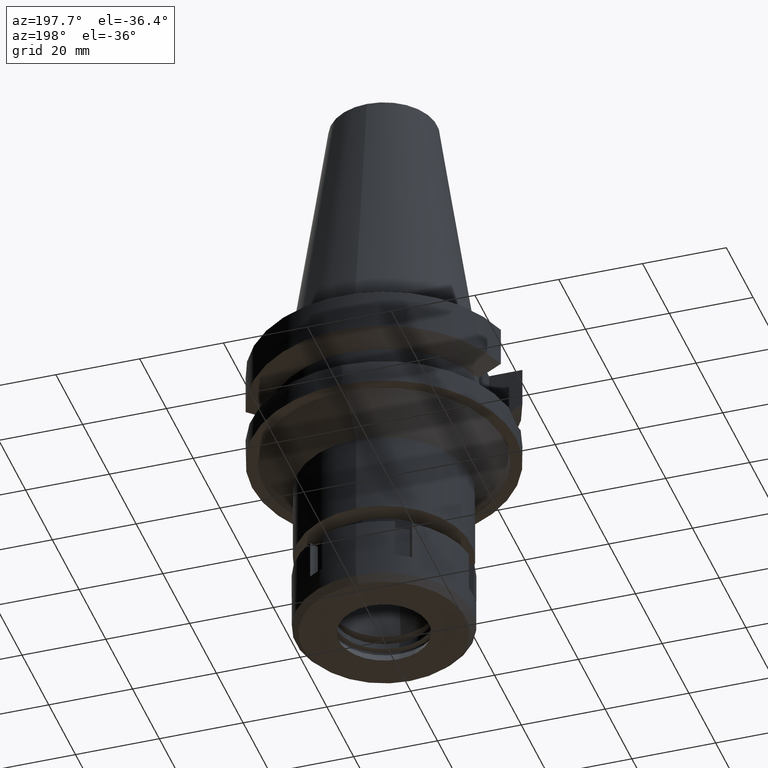
[diagram: clean part render]
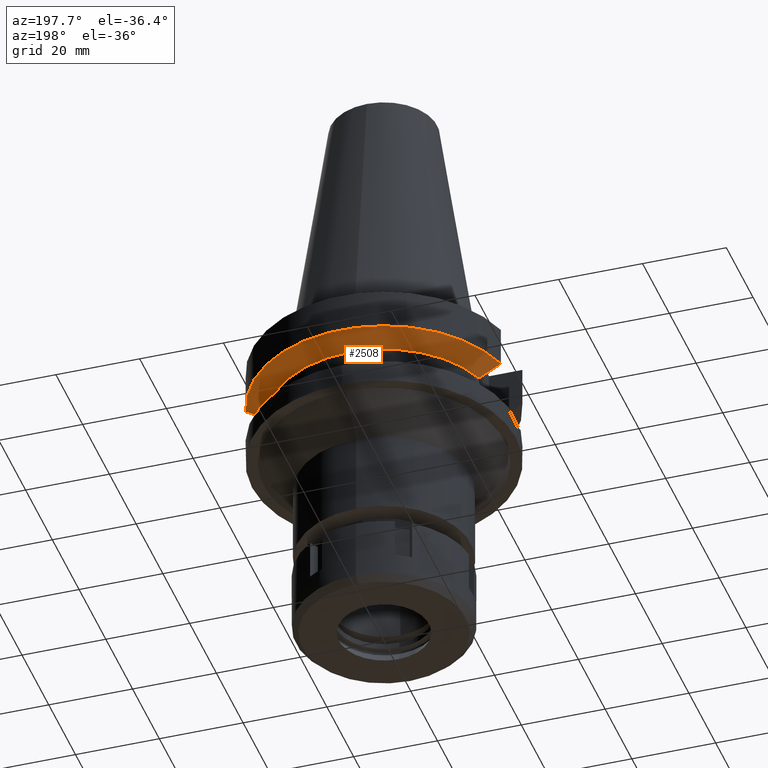
[diagram: same view with one face highlighted and labeled with its STEP entity id]
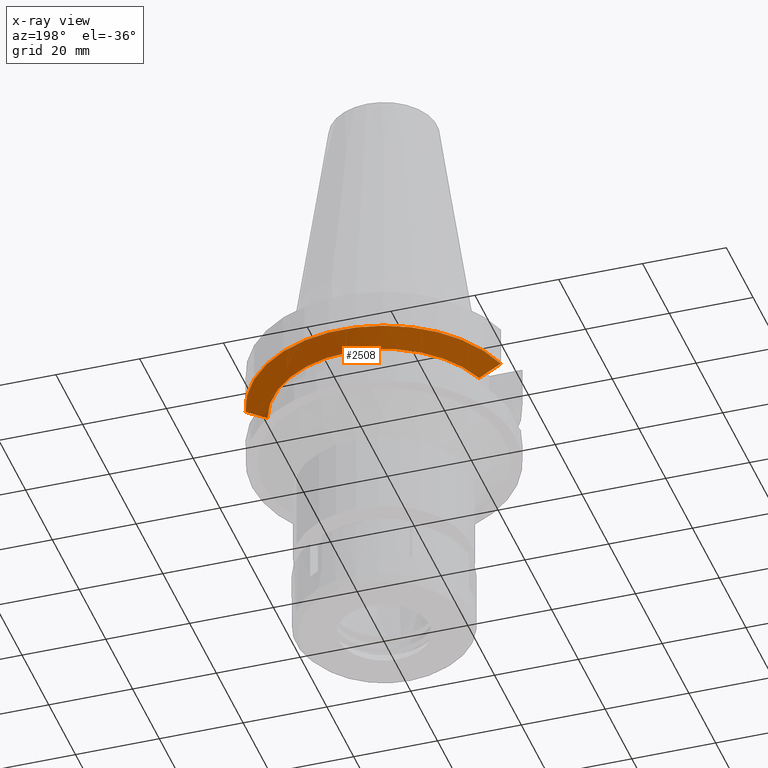
[diagram: x-ray of the same camera — body ghosted, the highlighted face saturated]
A machine part, auxiliary view. The second image highlights one B-rep face of the part: STEP entity #2508.
The next image is the same camera in x-ray: the body ghosted, the highlighted face saturated — about 0% of this face is hidden behind the body in this view.
In plain terms, the highlighted conical surface has half-angle 60 deg.
Its self-contained STEP definition (entity closure, byte-faithful):
#142 = CARTESIAN_POINT ( 'NONE',  ( -25.24772216800000280, 8.050001573123999776, -14.45224497855999957 ) ) ;
#153 = VERTEX_POINT ( 'NONE', #1625 ) ;
#208 = CARTESIAN_POINT ( 'NONE',  ( -30.45402162429000015, 8.050004155747998880, -11.56546821947000048 ) ) ;
#245 = FACE_OUTER_BOUND ( 'NONE', #260, .T. ) ;
#260 = EDGE_LOOP ( 'NONE', ( #3462, #1512, #2322, #3280 ) ) ;
#267 = EDGE_CURVE ( 'NONE', #2935, #1562, #2372, .T. ) ;
#282 = AXIS2_PLACEMENT_3D ( 'NONE', #3328, #876, #1964 ) ;
#438 = CARTESIAN_POINT ( 'NONE',  ( -30.45402162429000015, 8.050004155747998880, -11.56546821947000048 ) ) ;
#508 = CARTESIAN_POINT ( 'NONE',  ( 25.24772413735000143, 8.049995396532999337, -14.45229217510999931 ) ) ;
#700 = VERTEX_POINT ( 'NONE', #208 ) ;
#876 = DIRECTION ( 'NONE',  ( 0.0000000000000000000, 0.0000000000000000000, 1.000000000000000000 ) ) ;
#919 = CIRCLE ( 'NONE', #282, 31.50000000000000000 ) ;
#980 = CARTESIAN_POINT ( 'NONE',  ( -28.57295837302430286, 8.050008306445596062, -12.61547498999765082 ) ) ;
#1106 = EDGE_CURVE ( 'NONE', #153, #1562, #1843, .T. ) ;
#1505 = AXIS2_PLACEMENT_3D ( 'NONE', #2917, #1778, #2868 ) ;
#1512 = ORIENTED_EDGE ( 'NONE', *, *, #267, .T. ) ;
#1562 = VERTEX_POINT ( 'NONE', #1924 ) ;
#1625 = CARTESIAN_POINT ( 'NONE',  ( -25.24772216800000280, 8.050001573123999776, -14.45224497855999957 ) ) ;
#1627 = B_SPLINE_CURVE_WITH_KNOTS ( 'NONE', 3,
 ( #142, #3123, #980, #438 ),
 .UNSPECIFIED., .F., .F.,
 ( 4, 4 ),
 ( 0.0000000000000000000, 1.000000000000000000 ),
 .UNSPECIFIED. ) ;
#1666 = CARTESIAN_POINT ( 'NONE',  ( 30.45402291557000041, 8.049999270668999785, -11.56551222159999881 ) ) ;
#1778 = DIRECTION ( 'NONE',  ( 0.0000000000000000000, 0.0000000000000000000, -1.000000000000000000 ) ) ;
#1843 = CIRCLE ( 'NONE', #1505, 26.50000000000000711 ) ;
#1924 = CARTESIAN_POINT ( 'NONE',  ( 25.24772413735000143, 8.049995396532999337, -14.45229217510999931 ) ) ;
#1964 = DIRECTION ( 'NONE',  ( 0.0000000000000000000, 1.000000000000000000, 0.0000000000000000000 ) ) ;
#1999 = CARTESIAN_POINT ( 'NONE',  ( 30.45402291557000041, 8.049999270668999785, -11.56551222159999881 ) ) ;
#2322 = ORIENTED_EDGE ( 'NONE', *, *, #1106, .F. ) ;
#2371 = DIRECTION ( 'NONE',  ( 0.0000000000000000000, 1.000000000000000000, 0.0000000000000000000 ) ) ;
#2372 = B_SPLINE_CURVE_WITH_KNOTS ( 'NONE', 3,
 ( #1666, #2969, #2413, #508 ),
 .UNSPECIFIED., .F., .F.,
 ( 4, 4 ),
 ( 0.0000000000000000000, 1.000000000000000000 ),
 .UNSPECIFIED. ) ;
#2413 = CARTESIAN_POINT ( 'NONE',  ( 26.83754594931458470, 8.049990782869347328, -13.57774900353935266 ) ) ;
#2508 = ADVANCED_FACE ( 'NONE', ( #245 ), #3353, .T. ) ;
#2689 = DIRECTION ( 'NONE',  ( 0.0000000000000000000, 0.0000000000000000000, 1.000000000000000000 ) ) ;
#2701 = AXIS2_PLACEMENT_3D ( 'NONE', #3200, #2689, #2371 ) ;
#2733 = EDGE_CURVE ( 'NONE', #153, #700, #1627, .T. ) ;
#2868 = DIRECTION ( 'NONE',  ( -0.9527442516822307583, 0.3037735849057093818, 0.0000000000000000000 ) ) ;
#2917 = CARTESIAN_POINT ( 'NONE',  ( 0.0000000000000000000, 1.065333950388000029E-14, -14.45225699861000024 ) ) ;
#2935 = VERTEX_POINT ( 'NONE', #1999 ) ;
#2969 = CARTESIAN_POINT ( 'NONE',  ( 28.57292308729178387, 8.049998542286420644, -12.61549617092634534 ) ) ;
#3123 = CARTESIAN_POINT ( 'NONE',  ( -26.83758112031343401, 8.050003149644473055, -13.57772755641032347 ) ) ;
#3200 = CARTESIAN_POINT ( 'NONE',  ( 0.0000000000000000000, 1.065333950388000029E-14, -13.00888132564000088 ) ) ;
#3266 = EDGE_CURVE ( 'NONE', #2935, #700, #919, .T. ) ;
#3280 = ORIENTED_EDGE ( 'NONE', *, *, #2733, .T. ) ;
#3328 = CARTESIAN_POINT ( 'NONE',  ( 0.0000000000000000000, 1.065333950388000029E-14, -11.56550565266999975 ) ) ;
#3353 = CONICAL_SURFACE ( 'NONE', #2701, 29.00000000000000000, 1.047197551196400456 ) ;
#3462 = ORIENTED_EDGE ( 'NONE', *, *, #3266, .F. ) ;